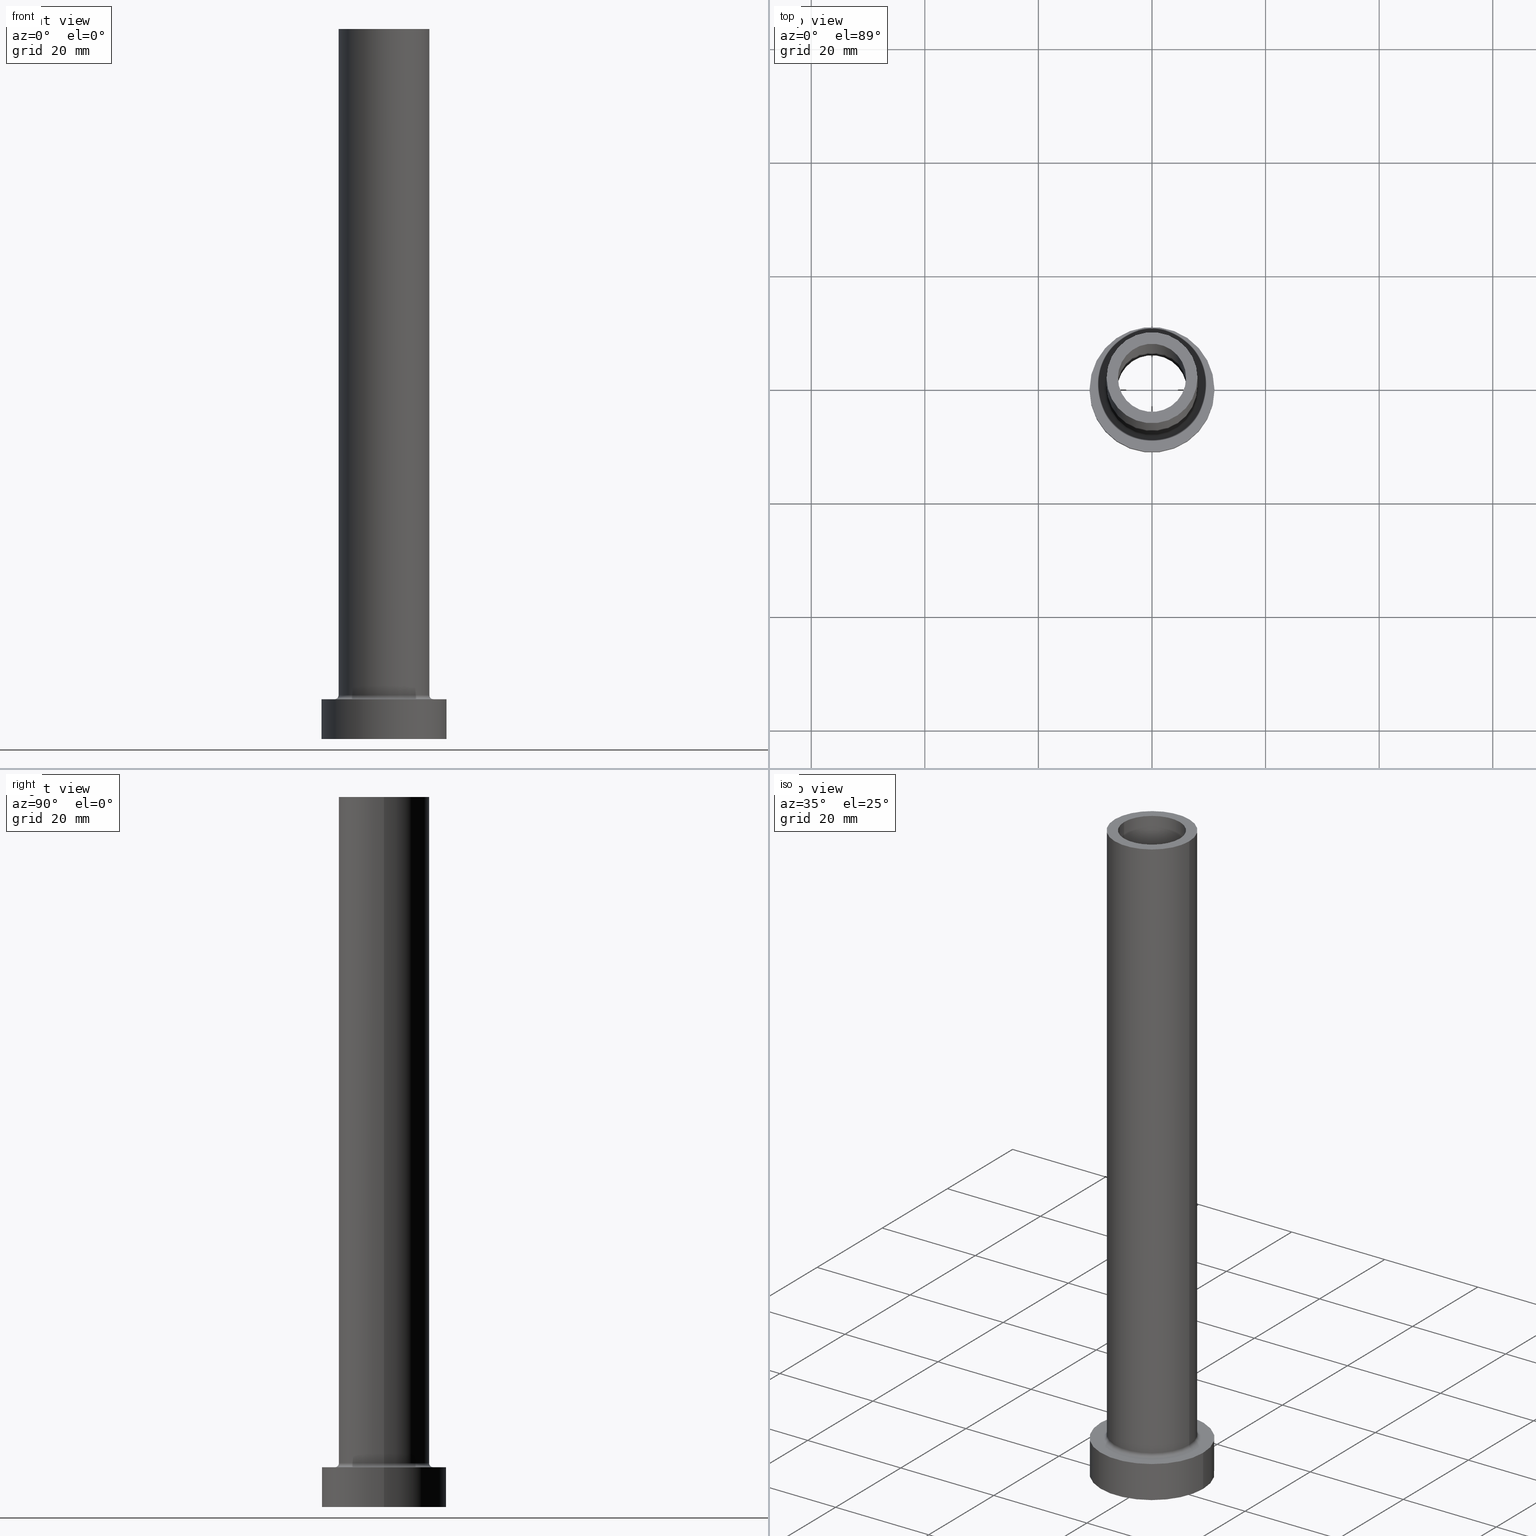
[diagram: canonical four-view strip — front | top / right | iso, engineering-drawing reading convention]
A machine part, canonical four-view strip (front | top / right | iso — engineering-drawing reading convention). The complete STEP part file that produces these views, byte-faithful:
ISO-10303-21;
HEADER;
FILE_DESCRIPTION (( 'STEP AP203' ),
    '1' );
FILE_NAME ('2266.STEP',
    '2023-02-13T07:42:56',
    ( '' ),
    ( '' ),
    'SwSTEP 2.0',
    'SolidWorks 2019',
    '' );
FILE_SCHEMA (( 'CONFIG_CONTROL_DESIGN' ));
ENDSEC;

DATA;
#1 = DIRECTION ( 'NONE',  ( 0.000000000000000000, 0.000000000000000000, 1.000000000000000000 ) ) ;
#2 = VERTEX_POINT ( 'NONE', #250 ) ;
#3 = EDGE_CURVE ( 'NONE', #64, #173, #388, .T. ) ;
#4 = AXIS2_PLACEMENT_3D ( 'NONE', #340, #83, #441 ) ;
#5 = VERTEX_POINT ( 'NONE', #45 ) ;
#6 = DIRECTION ( 'NONE',  ( -1.000000000000000000, 0.000000000000000000, 0.000000000000000000 ) ) ;
#7 = DATE_AND_TIME ( #330, #72 ) ;
#8 = CARTESIAN_POINT ( 'NONE',  ( 8.000000000000000000, 9.797174393178825657E-16, 125.0000000000000000 ) ) ;
#9 = PERSON_AND_ORGANIZATION ( #387, #12 ) ;
#10 = VECTOR ( 'NONE', #192, 1000.000000000000000 ) ;
#11 = LINE ( 'NONE', #8, #439 ) ;
#12 = ORGANIZATION ( 'NEUR�EN�', 'NEUR�EN�', '' ) ;
#13 = AXIS2_PLACEMENT_3D ( 'NONE', #96, #391, #63 ) ;
#14 = PLANE ( 'NONE',  #42 ) ;
#15 = PLANE ( 'NONE',  #358 ) ;
#16 = CIRCLE ( 'NONE', #76, 0.7000000000000000666 ) ;
#17 = EDGE_CURVE ( 'NONE', #442, #131, #399, .T. ) ;
#18 = DIRECTION ( 'NONE',  ( 0.000000000000000000, 0.000000000000000000, 1.000000000000000000 ) ) ;
#19 = ORIENTED_EDGE ( 'NONE', *, *, #304, .F. ) ;
#20 = LINE ( 'NONE', #60, #10 ) ;
#21 = ORIENTED_EDGE ( 'NONE', *, *, #411, .F. ) ;
#22 = FACE_OUTER_BOUND ( 'NONE', #375, .T. ) ;
#23 = CARTESIAN_POINT ( 'NONE',  ( 6.150000000000000355, 7.531577814756222064E-16, 80.00000000000000000 ) ) ;
#24 = ORIENTED_EDGE ( 'NONE', *, *, #257, .F. ) ;
#25 = ORIENTED_EDGE ( 'NONE', *, *, #186, .T. ) ;
#26 = EDGE_LOOP ( 'NONE', ( #272, #164 ) ) ;
#27 = DIRECTION ( 'NONE',  ( 0.000000000000000000, 0.000000000000000000, -1.000000000000000000 ) ) ;
#28 = ORIENTED_EDGE ( 'NONE', *, *, #17, .T. ) ;
#29 = DIRECTION ( 'NONE',  ( -0.000000000000000000, -0.000000000000000000, -1.000000000000000000 ) ) ;
#30 = ORIENTED_EDGE ( 'NONE', *, *, #319, .F. ) ;
#31 = AXIS2_PLACEMENT_3D ( 'NONE', #323, #1, #268 ) ;
#32 =( LENGTH_UNIT ( ) NAMED_UNIT ( * ) SI_UNIT ( .MILLI., .METRE. ) );
#33 = CARTESIAN_POINT ( 'NONE',  ( 0.000000000000000000, 0.000000000000000000, 125.0000000000000000 ) ) ;
#34 = PERSON_AND_ORGANIZATION_ROLE ( 'creator' ) ;
#35 = CC_DESIGN_DATE_AND_TIME_ASSIGNMENT ( #364, #333, ( #112 ) ) ;
#36 = DIRECTION ( 'NONE',  ( 0.000000000000000000, 0.000000000000000000, 1.000000000000000000 ) ) ;
#37 = PERSON_AND_ORGANIZATION ( #387, #12 ) ;
#38 = AXIS2_PLACEMENT_3D ( 'NONE', #276, #446, #228 ) ;
#39 = LINE ( 'NONE', #327, #141 ) ;
#40 = CC_DESIGN_PERSON_AND_ORGANIZATION_ASSIGNMENT ( #292, #177, ( #52 ) ) ;
#41 = AXIS2_PLACEMENT_3D ( 'NONE', #252, #36, #459 ) ;
#42 = AXIS2_PLACEMENT_3D ( 'NONE', #342, #18, #269 ) ;
#43 = DIRECTION ( 'NONE',  ( -0.000000000000000000, -0.000000000000000000, -1.000000000000000000 ) ) ;
#44 = DIRECTION ( 'NONE',  ( 0.000000000000000000, 0.000000000000000000, -1.000000000000000000 ) ) ;
#45 = CARTESIAN_POINT ( 'NONE',  ( -6.150000000000000355, 0.000000000000000000, 80.00000000000000000 ) ) ;
#46 = ORIENTED_EDGE ( 'NONE', *, *, #326, .T. ) ;
#47 = VERTEX_POINT ( 'NONE', #260 ) ;
#48 = DESIGN_CONTEXT ( 'detailed design', #386, 'design' ) ;
#49 = DIRECTION ( 'NONE',  ( -1.000000000000000000, 0.000000000000000000, 0.000000000000000000 ) ) ;
#50 = DIRECTION ( 'NONE',  ( 1.000000000000000000, 0.000000000000000000, 0.000000000000000000 ) ) ;
#51 = ORIENTED_EDGE ( 'NONE', *, *, #319, .T. ) ;
#52 = PRODUCT_DEFINITION_FORMATION_WITH_SPECIFIED_SOURCE ( 'LIBOVOLN�', '', #401, .NOT_KNOWN. ) ;
#53 = EDGE_CURVE ( 'NONE', #5, #346, #329, .T. ) ;
#54 = LINE ( 'NONE', #195, #139 ) ;
#55 = EDGE_LOOP ( 'NONE', ( #122, #223 ) ) ;
#56 = FACE_OUTER_BOUND ( 'NONE', #308, .T. ) ;
#57 = DIRECTION ( 'NONE',  ( -0.000000000000000000, -0.000000000000000000, -1.000000000000000000 ) ) ;
#58 = ORIENTED_EDGE ( 'NONE', *, *, #278, .T. ) ;
#59 = CARTESIAN_POINT ( 'NONE',  ( -11.00000000000000000, 0.000000000000000000, 7.000000000000000000 ) ) ;
#60 = CARTESIAN_POINT ( 'NONE',  ( -6.150000000000000355, 0.000000000000000000, 97.39482681718907031 ) ) ;
#61 = ORIENTED_EDGE ( 'NONE', *, *, #397, .T. ) ;
#62 = DIRECTION ( 'NONE',  ( 1.000000000000000000, 0.000000000000000000, 0.000000000000000000 ) ) ;
#63 = DIRECTION ( 'NONE',  ( 1.000000000000000000, 0.000000000000000000, 0.000000000000000000 ) ) ;
#64 = VERTEX_POINT ( 'NONE', #231 ) ;
#65 = DIRECTION ( 'NONE',  ( -0.000000000000000000, -0.000000000000000000, -1.000000000000000000 ) ) ;
#66 = FACE_BOUND ( 'NONE', #382, .T. ) ;
#67 = EDGE_CURVE ( 'NONE', #131, #442, #160, .T. ) ;
#68 = CARTESIAN_POINT ( 'NONE',  ( 8.000000000000000000, 9.797174393178825657E-16, 7.699999999999998401 ) ) ;
#69 = SECURITY_CLASSIFICATION_LEVEL ( 'unclassified' ) ;
#70 = ORIENTED_EDGE ( 'NONE', *, *, #397, .F. ) ;
#71 = CALENDAR_DATE ( 2023, 13, 2 ) ;
#72 = LOCAL_TIME ( 8, 42, 56.00000000000000000, #134 ) ;
#73 = DIRECTION ( 'NONE',  ( -0.000000000000000000, -0.000000000000000000, -1.000000000000000000 ) ) ;
#74 = SHAPE_DEFINITION_REPRESENTATION ( #168, #265 ) ;
#75 = CARTESIAN_POINT ( 'NONE',  ( 0.000000000000000000, 0.000000000000000000, 7.699999999999998401 ) ) ;
#76 = AXIS2_PLACEMENT_3D ( 'NONE', #310, #200, #348 ) ;
#77 = AXIS2_PLACEMENT_3D ( 'NONE', #183, #290, #354 ) ;
#78 = PLANE ( 'NONE',  #84 ) ;
#79 = ORIENTED_EDGE ( 'NONE', *, *, #344, .T. ) ;
#80 = AXIS2_PLACEMENT_3D ( 'NONE', #75, #142, #437 ) ;
#81 = CYLINDRICAL_SURFACE ( 'NONE', #102, 6.150000000000000355 ) ;
#82 = CYLINDRICAL_SURFACE ( 'NONE', #293, 6.000000000000000888 ) ;
#83 = DIRECTION ( 'NONE',  ( 0.000000000000000000, 0.000000000000000000, 1.000000000000000000 ) ) ;
#84 = AXIS2_PLACEMENT_3D ( 'NONE', #307, #89, #118 ) ;
#85 = DIRECTION ( 'NONE',  ( 1.000000000000000000, 0.000000000000000000, -0.000000000000000000 ) ) ;
#86 = ORIENTED_EDGE ( 'NONE', *, *, #370, .T. ) ;
#87 = ADVANCED_FACE ( 'NONE', ( #152 ), #239, .F. ) ;
#88 = AXIS2_PLACEMENT_3D ( 'NONE', #352, #456, #62 ) ;
#89 = DIRECTION ( 'NONE',  ( 0.000000000000000000, 0.000000000000000000, 1.000000000000000000 ) ) ;
#90 = EDGE_LOOP ( 'NONE', ( #104, #341 ) ) ;
#91 = CYLINDRICAL_SURFACE ( 'NONE', #256, 11.00000000000000000 ) ;
#92 = AXIS2_PLACEMENT_3D ( 'NONE', #33, #427, #317 ) ;
#93 = DIRECTION ( 'NONE',  ( -0.000000000000000000, -0.000000000000000000, -1.000000000000000000 ) ) ;
#94 = CARTESIAN_POINT ( 'NONE',  ( 0.000000000000000000, 0.000000000000000000, 7.000000000000000000 ) ) ;
#95 = ORIENTED_EDGE ( 'NONE', *, *, #458, .T. ) ;
#96 = CARTESIAN_POINT ( 'NONE',  ( 0.000000000000000000, 0.000000000000000000, 0.000000000000000000 ) ) ;
#97 = CYLINDRICAL_SURFACE ( 'NONE', #309, 6.000000000000000888 ) ;
#98 = CC_DESIGN_APPROVAL ( #430, ( #52 ) ) ;
#99 = FACE_OUTER_BOUND ( 'NONE', #204, .T. ) ;
#100 = CYLINDRICAL_SURFACE ( 'NONE', #420, 6.150000000000000355 ) ;
#101 = APPROVAL_ROLE ( '' ) ;
#102 = AXIS2_PLACEMENT_3D ( 'NONE', #117, #224, #49 ) ;
#103 = ADVANCED_FACE ( 'NONE', ( #22 ), #82, .F. ) ;
#104 = ORIENTED_EDGE ( 'NONE', *, *, #445, .T. ) ;
#105 = DIRECTION ( 'NONE',  ( 1.000000000000000000, 0.000000000000000000, 0.000000000000000000 ) ) ;
#106 = APPROVAL_DATE_TIME ( #219, #369 ) ;
#107 = CC_DESIGN_PERSON_AND_ORGANIZATION_ASSIGNMENT ( #207, #425, ( #401 ) ) ;
#108 = DATE_AND_TIME ( #362, #111 ) ;
#109 = COORDINATED_UNIVERSAL_TIME_OFFSET ( 1, 0, .AHEAD. ) ;
#110 = VECTOR ( 'NONE', #27, 1000.000000000000000 ) ;
#111 = LOCAL_TIME ( 8, 42, 56.00000000000000000, #322 ) ;
#112 = PRODUCT_DEFINITION ( 'NEZN�M�', '', #52, #48 ) ;
#113 = ADVANCED_FACE ( 'NONE', ( #266, #187 ), #78, .T. ) ;
#114 = DIRECTION ( 'NONE',  ( 0.000000000000000000, 0.000000000000000000, 1.000000000000000000 ) ) ;
#115 = CARTESIAN_POINT ( 'NONE',  ( 0.000000000000000000, 0.000000000000000000, 80.00000000000000000 ) ) ;
#116 = ORIENTED_EDGE ( 'NONE', *, *, #338, .F. ) ;
#117 = CARTESIAN_POINT ( 'NONE',  ( 0.000000000000000000, 0.000000000000000000, 97.39482681718907031 ) ) ;
#118 = DIRECTION ( 'NONE',  ( 1.000000000000000000, 0.000000000000000000, -0.000000000000000000 ) ) ;
#119 = VERTEX_POINT ( 'NONE', #311 ) ;
#120 = CARTESIAN_POINT ( 'NONE',  ( 6.000000000000000888, 7.347880794884119736E-16, 125.0000000000000000 ) ) ;
#121 = FACE_OUTER_BOUND ( 'NONE', #263, .T. ) ;
#122 = ORIENTED_EDGE ( 'NONE', *, *, #287, .T. ) ;
#123 = CARTESIAN_POINT ( 'NONE',  ( 6.150000000000000355, 7.531577814756222064E-16, 97.39482681718907031 ) ) ;
#124 = ORIENTED_EDGE ( 'NONE', *, *, #377, .F. ) ;
#125 = LINE ( 'NONE', #123, #110 ) ;
#126 = PLANE ( 'NONE',  #31 ) ;
#127 = ORIENTED_EDGE ( 'NONE', *, *, #287, .F. ) ;
#128 = EDGE_CURVE ( 'NONE', #405, #196, #355, .T. ) ;
#129 =( NAMED_UNIT ( * ) PLANE_ANGLE_UNIT ( ) SI_UNIT ( $, .RADIAN. ) );
#130 = ORIENTED_EDGE ( 'NONE', *, *, #337, .T. ) ;
#131 = VERTEX_POINT ( 'NONE', #120 ) ;
#132 = CC_DESIGN_PERSON_AND_ORGANIZATION_ASSIGNMENT ( #286, #34, ( #112 ) ) ;
#133 = APPROVAL_DATE_TIME ( #7, #383 ) ;
#134 = COORDINATED_UNIVERSAL_TIME_OFFSET ( 1, 0, .AHEAD. ) ;
#135 = DIRECTION ( 'NONE',  ( 1.000000000000000000, 0.000000000000000000, 0.000000000000000000 ) ) ;
#136 = CALENDAR_DATE ( 2023, 13, 2 ) ;
#137 = AXIS2_PLACEMENT_3D ( 'NONE', #413, #225, #149 ) ;
#138 = ADVANCED_FACE ( 'NONE', ( #380, #222 ), #14, .F. ) ;
#139 = VECTOR ( 'NONE', #271, 1000.000000000000000 ) ;
#140 = EDGE_CURVE ( 'NONE', #302, #119, #209, .T. ) ;
#141 = VECTOR ( 'NONE', #161, 1000.000000000000000 ) ;
#142 = DIRECTION ( 'NONE',  ( 0.000000000000000000, 0.000000000000000000, 1.000000000000000000 ) ) ;
#143 = DIRECTION ( 'NONE',  ( 1.000000000000000000, 0.000000000000000000, 0.000000000000000000 ) ) ;
#144 = AXIS2_PLACEMENT_3D ( 'NONE', #251, #73, #288 ) ;
#145 = EDGE_CURVE ( 'NONE', #423, #193, #264, .T. ) ;
#146 = DIRECTION ( 'NONE',  ( 1.000000000000000000, 0.000000000000000000, 0.000000000000000000 ) ) ;
#147 = VERTEX_POINT ( 'NONE', #156 ) ;
#148 = LOCAL_TIME ( 8, 42, 56.00000000000000000, #255 ) ;
#149 = DIRECTION ( 'NONE',  ( 1.000000000000000000, 0.000000000000000000, 0.000000000000000000 ) ) ;
#150 = DIRECTION ( 'NONE',  ( 0.000000000000000000, 0.000000000000000000, 1.000000000000000000 ) ) ;
#151 = EDGE_LOOP ( 'NONE', ( #30, #116 ) ) ;
#152 = FACE_OUTER_BOUND ( 'NONE', #343, .T. ) ;
#153 = AXIS2_PLACEMENT_3D ( 'NONE', #419, #93, #201 ) ;
#154 = ORIENTED_EDGE ( 'NONE', *, *, #17, .F. ) ;
#155 = CIRCLE ( 'NONE', #221, 11.00000000000000000 ) ;
#156 = CARTESIAN_POINT ( 'NONE',  ( -11.00000000000000000, 0.000000000000000000, 0.000000000000000000 ) ) ;
#157 = EDGE_CURVE ( 'NONE', #2, #357, #448, .T. ) ;
#158 = ORIENTED_EDGE ( 'NONE', *, *, #411, .T. ) ;
#159 = CYLINDRICAL_SURFACE ( 'NONE', #259, 11.00000000000000000 ) ;
#160 = CIRCLE ( 'NONE', #434, 6.000000000000000888 ) ;
#161 = DIRECTION ( 'NONE',  ( -0.000000000000000000, -0.000000000000000000, -1.000000000000000000 ) ) ;
#162 = CIRCLE ( 'NONE', #432, 6.000000000000000888 ) ;
#163 = DIRECTION ( 'NONE',  ( 0.000000000000000000, 0.000000000000000000, -1.000000000000000000 ) ) ;
#164 = ORIENTED_EDGE ( 'NONE', *, *, #186, .F. ) ;
#165 = APPROVAL_STATUS ( 'not_yet_approved' ) ;
#166 = CARTESIAN_POINT ( 'NONE',  ( 11.00000000000000000, 1.347111479062088405E-15, 0.000000000000000000 ) ) ;
#167 = CC_DESIGN_SECURITY_CLASSIFICATION ( #365, ( #52 ) ) ;
#168 = PRODUCT_DEFINITION_SHAPE ( 'NONE', 'NONE',  #112 ) ;
#169 = ORIENTED_EDGE ( 'NONE', *, *, #3, .T. ) ;
#170 = LOCAL_TIME ( 8, 42, 56.00000000000000000, #109 ) ;
#171 = FACE_OUTER_BOUND ( 'NONE', #351, .T. ) ;
#172 = COORDINATED_UNIVERSAL_TIME_OFFSET ( 1, 0, .AHEAD. ) ;
#173 = VERTEX_POINT ( 'NONE', #443 ) ;
#174 = APPROVAL_STATUS ( 'not_yet_approved' ) ;
#175 = ADVANCED_FACE ( 'NONE', ( #412 ), #81, .F. ) ;
#176 = CIRCLE ( 'NONE', #267, 11.00000000000000000 ) ;
#177 = PERSON_AND_ORGANIZATION_ROLE ( 'creator' ) ;
#178 = CARTESIAN_POINT ( 'NONE',  ( 0.000000000000000000, 0.000000000000000000, 7.699999999999998401 ) ) ;
#179 = CIRCLE ( 'NONE', #384, 8.699999999999999289 ) ;
#180 = CC_DESIGN_PERSON_AND_ORGANIZATION_ASSIGNMENT ( #213, #359, ( #365 ) ) ;
#181 = AXIS2_PLACEMENT_3D ( 'NONE', #349, #378, #440 ) ;
#182 = EDGE_CURVE ( 'NONE', #346, #5, #306, .T. ) ;
#183 = CARTESIAN_POINT ( 'NONE',  ( -8.699999999999999289, 1.065442715258197248E-15, 7.699999999999998401 ) ) ;
#184 = DIRECTION ( 'NONE',  ( 0.000000000000000000, 0.000000000000000000, 1.000000000000000000 ) ) ;
#185 = DIRECTION ( 'NONE',  ( 0.000000000000000000, 0.000000000000000000, 1.000000000000000000 ) ) ;
#186 = EDGE_CURVE ( 'NONE', #173, #64, #220, .T. ) ;
#187 = FACE_OUTER_BOUND ( 'NONE', #90, .T. ) ;
#188 = EDGE_LOOP ( 'NONE', ( #211, #158, #353, #422 ) ) ;
#189 = MANIFOLD_SOLID_BREP ( 'Odebrat vysunut�m4', #376 ) ;
#190 = ADVANCED_FACE ( 'NONE', ( #280 ), #210, .T. ) ;
#191 = DIRECTION ( 'NONE',  ( 0.000000000000000000, 0.000000000000000000, 1.000000000000000000 ) ) ;
#192 = DIRECTION ( 'NONE',  ( 0.000000000000000000, 0.000000000000000000, -1.000000000000000000 ) ) ;
#193 = VERTEX_POINT ( 'NONE', #433 ) ;
#194 = DIRECTION ( 'NONE',  ( -1.000000000000000000, 0.000000000000000000, 0.000000000000000000 ) ) ;
#195 = CARTESIAN_POINT ( 'NONE',  ( -6.000000000000000888, 0.000000000000000000, 125.0000000000000000 ) ) ;
#196 = VERTEX_POINT ( 'NONE', #59 ) ;
#197 = DIRECTION ( 'NONE',  ( 1.000000000000000000, 0.000000000000000000, 0.000000000000000000 ) ) ;
#198 = DIRECTION ( 'NONE',  ( 1.000000000000000000, 0.000000000000000000, 0.000000000000000000 ) ) ;
#199 = ORIENTED_EDGE ( 'NONE', *, *, #257, .T. ) ;
#200 = DIRECTION ( 'NONE',  ( 0.000000000000000000, -1.000000000000000000, 0.000000000000000000 ) ) ;
#201 = DIRECTION ( 'NONE',  ( 1.000000000000000000, 0.000000000000000000, 0.000000000000000000 ) ) ;
#202 = ORIENTED_EDGE ( 'NONE', *, *, #344, .F. ) ;
#203 = ADVANCED_FACE ( 'NONE', ( #56 ), #91, .T. ) ;
#204 = EDGE_LOOP ( 'NONE', ( #208, #328, #46, #169 ) ) ;
#205 = FACE_OUTER_BOUND ( 'NONE', #188, .T. ) ;
#206 = ORIENTED_EDGE ( 'NONE', *, *, #157, .T. ) ;
#207 = PERSON_AND_ORGANIZATION ( #387, #12 ) ;
#208 = ORIENTED_EDGE ( 'NONE', *, *, #275, .F. ) ;
#209 = CIRCLE ( 'NONE', #153, 8.699999999999999289 ) ;
#210 = CYLINDRICAL_SURFACE ( 'NONE', #144, 8.000000000000000000 ) ;
#211 = ORIENTED_EDGE ( 'NONE', *, *, #128, .F. ) ;
#212 = DIRECTION ( 'NONE',  ( 0.000000000000000000, 0.000000000000000000, -1.000000000000000000 ) ) ;
#213 = PERSON_AND_ORGANIZATION ( #387, #12 ) ;
#214 = VERTEX_POINT ( 'NONE', #166 ) ;
#215 =( GEOMETRIC_REPRESENTATION_CONTEXT ( 3 ) GLOBAL_UNCERTAINTY_ASSIGNED_CONTEXT ( ( #227 ) ) GLOBAL_UNIT_ASSIGNED_CONTEXT ( ( #32, #129, #403 ) ) REPRESENTATION_CONTEXT ( 'NONE', 'WORKASPACE' ) );
#216 = DATE_TIME_ROLE ( 'classification_date' ) ;
#217 = AXIS2_PLACEMENT_3D ( 'NONE', #270, #57, #258 ) ;
#218 = CARTESIAN_POINT ( 'NONE',  ( 8.699999999999999289, 0.000000000000000000, 6.999999999999999112 ) ) ;
#219 = DATE_AND_TIME ( #410, #170 ) ;
#220 = CIRCLE ( 'NONE', #428, 6.150000000000000355 ) ;
#221 = AXIS2_PLACEMENT_3D ( 'NONE', #371, #236, #198 ) ;
#222 = FACE_OUTER_BOUND ( 'NONE', #151, .T. ) ;
#223 = ORIENTED_EDGE ( 'NONE', *, *, #421, .T. ) ;
#224 = DIRECTION ( 'NONE',  ( 0.000000000000000000, 0.000000000000000000, -1.000000000000000000 ) ) ;
#225 = DIRECTION ( 'NONE',  ( 0.000000000000000000, 0.000000000000000000, 1.000000000000000000 ) ) ;
#226 = ORIENTED_EDGE ( 'NONE', *, *, #140, .T. ) ;
#227 = UNCERTAINTY_MEASURE_WITH_UNIT (LENGTH_MEASURE( 1.000000000000000082E-05 ), #32, 'distance_accuracy_value', 'NONE');
#228 = DIRECTION ( 'NONE',  ( 1.000000000000000000, 0.000000000000000000, 0.000000000000000000 ) ) ;
#229 = CARTESIAN_POINT ( 'NONE',  ( -11.00000000000000000, 0.000000000000000000, 7.000000000000000000 ) ) ;
#230 = EDGE_LOOP ( 'NONE', ( #226, #95 ) ) ;
#231 = CARTESIAN_POINT ( 'NONE',  ( -6.150000000000000355, 0.000000000000000000, 0.000000000000000000 ) ) ;
#232 = DIRECTION ( 'NONE',  ( -0.000000000000000000, -0.000000000000000000, -1.000000000000000000 ) ) ;
#233 = ORIENTED_EDGE ( 'NONE', *, *, #370, .F. ) ;
#234 = CC_DESIGN_APPROVAL ( #383, ( #365 ) ) ;
#235 = CARTESIAN_POINT ( 'NONE',  ( 0.000000000000000000, 0.000000000000000000, 7.000000000000000000 ) ) ;
#236 = DIRECTION ( 'NONE',  ( 0.000000000000000000, 0.000000000000000000, 1.000000000000000000 ) ) ;
#237 = EDGE_LOOP ( 'NONE', ( #233, #61, #305, #24 ) ) ;
#238 = CARTESIAN_POINT ( 'NONE',  ( 6.000000000000000888, 7.347880794884119736E-16, 125.0000000000000000 ) ) ;
#239 = TOROIDAL_SURFACE ( 'NONE', #38, 8.699999999999999289, 0.6999999999999999556 ) ;
#240 = VERTEX_POINT ( 'NONE', #390 ) ;
#241 = ORIENTED_EDGE ( 'NONE', *, *, #145, .F. ) ;
#242 = DIRECTION ( 'NONE',  ( -0.000000000000000000, -0.000000000000000000, -1.000000000000000000 ) ) ;
#243 = CARTESIAN_POINT ( 'NONE',  ( 0.000000000000000000, 0.000000000000000000, 97.39482681718907031 ) ) ;
#244 = APPROVAL_STATUS ( 'not_yet_approved' ) ;
#245 = EDGE_LOOP ( 'NONE', ( #320, #457 ) ) ;
#246 = AXIS2_PLACEMENT_3D ( 'NONE', #339, #114, #143 ) ;
#247 = APPROVAL_DATE_TIME ( #108, #430 ) ;
#248 = DIRECTION ( 'NONE',  ( -0.000000000000000000, -0.000000000000000000, -1.000000000000000000 ) ) ;
#249 = VECTOR ( 'NONE', #232, 1000.000000000000000 ) ;
#250 = CARTESIAN_POINT ( 'NONE',  ( 6.000000000000000888, 7.347880794884119736E-16, 80.00000000000000000 ) ) ;
#251 = CARTESIAN_POINT ( 'NONE',  ( 0.000000000000000000, 0.000000000000000000, 125.0000000000000000 ) ) ;
#252 = CARTESIAN_POINT ( 'NONE',  ( 0.000000000000000000, 0.000000000000000000, 7.000000000000000000 ) ) ;
#253 = DATE_AND_TIME ( #71, #336 ) ;
#254 = ADVANCED_FACE ( 'NONE', ( #66, #398 ), #126, .T. ) ;
#255 = COORDINATED_UNIVERSAL_TIME_OFFSET ( 1, 0, .AHEAD. ) ;
#256 = AXIS2_PLACEMENT_3D ( 'NONE', #94, #385, #460 ) ;
#257 = EDGE_CURVE ( 'NONE', #423, #302, #16, .T. ) ;
#258 = DIRECTION ( 'NONE',  ( 1.000000000000000000, 0.000000000000000000, 0.000000000000000000 ) ) ;
#259 = AXIS2_PLACEMENT_3D ( 'NONE', #279, #242, #438 ) ;
#260 = CARTESIAN_POINT ( 'NONE',  ( 8.000000000000000000, 9.797174393178825657E-16, 125.0000000000000000 ) ) ;
#261 = EDGE_LOOP ( 'NONE', ( #373, #206 ) ) ;
#262 = DIRECTION ( 'NONE',  ( -0.000000000000000000, -0.000000000000000000, -1.000000000000000000 ) ) ;
#263 = EDGE_LOOP ( 'NONE', ( #28, #58, #402, #202 ) ) ;
#264 = CIRCLE ( 'NONE', #181, 8.000000000000000000 ) ;
#265 = ADVANCED_BREP_SHAPE_REPRESENTATION ( '2266', ( #189, #13 ), #215 ) ;
#266 = FACE_BOUND ( 'NONE', #230, .T. ) ;
#267 = AXIS2_PLACEMENT_3D ( 'NONE', #379, #150, #50 ) ;
#268 = DIRECTION ( 'NONE',  ( 1.000000000000000000, 0.000000000000000000, -0.000000000000000000 ) ) ;
#269 = DIRECTION ( 'NONE',  ( 1.000000000000000000, 0.000000000000000000, -0.000000000000000000 ) ) ;
#270 = CARTESIAN_POINT ( 'NONE',  ( 0.000000000000000000, 0.000000000000000000, 0.000000000000000000 ) ) ;
#271 = DIRECTION ( 'NONE',  ( 0.000000000000000000, 0.000000000000000000, -1.000000000000000000 ) ) ;
#272 = ORIENTED_EDGE ( 'NONE', *, *, #3, .F. ) ;
#273 = CIRCLE ( 'NONE', #92, 8.000000000000000000 ) ;
#274 = LINE ( 'NONE', #238, #417 ) ;
#275 = EDGE_CURVE ( 'NONE', #346, #173, #125, .T. ) ;
#276 = CARTESIAN_POINT ( 'NONE',  ( 0.000000000000000000, 0.000000000000000000, 7.699999999999998401 ) ) ;
#277 = ORIENTED_EDGE ( 'NONE', *, *, #278, .F. ) ;
#278 = EDGE_CURVE ( 'NONE', #131, #2, #274, .T. ) ;
#279 = CARTESIAN_POINT ( 'NONE',  ( 0.000000000000000000, 0.000000000000000000, 7.000000000000000000 ) ) ;
#280 = FACE_OUTER_BOUND ( 'NONE', #316, .T. ) ;
#281 = ORIENTED_EDGE ( 'NONE', *, *, #458, .F. ) ;
#282 = CC_DESIGN_APPROVAL ( #369, ( #112 ) ) ;
#283 = CARTESIAN_POINT ( 'NONE',  ( 0.000000000000000000, 0.000000000000000000, 125.0000000000000000 ) ) ;
#284 = CARTESIAN_POINT ( 'NONE',  ( 0.000000000000000000, 0.000000000000000000, 80.00000000000000000 ) ) ;
#285 = ORIENTED_EDGE ( 'NONE', *, *, #377, .T. ) ;
#286 = PERSON_AND_ORGANIZATION ( #387, #12 ) ;
#287 = EDGE_CURVE ( 'NONE', #240, #47, #294, .T. ) ;
#288 = DIRECTION ( 'NONE',  ( -1.000000000000000000, 0.000000000000000000, 0.000000000000000000 ) ) ;
#289 = APPROVAL_ROLE ( '' ) ;
#290 = DIRECTION ( 'NONE',  ( 1.224646799147353207E-16, 1.000000000000000000, -0.000000000000000000 ) ) ;
#291 = ADVANCED_FACE ( 'NONE', ( #205 ), #159, .T. ) ;
#292 = PERSON_AND_ORGANIZATION ( #387, #12 ) ;
#293 = AXIS2_PLACEMENT_3D ( 'NONE', #450, #44, #194 ) ;
#294 = CIRCLE ( 'NONE', #88, 8.000000000000000000 ) ;
#295 = VECTOR ( 'NONE', #43, 1000.000000000000000 ) ;
#296 = CC_DESIGN_DATE_AND_TIME_ASSIGNMENT ( #253, #216, ( #365 ) ) ;
#297 = DIRECTION ( 'NONE',  ( -1.000000000000000000, 0.000000000000000000, 0.000000000000000000 ) ) ;
#298 = EDGE_CURVE ( 'NONE', #357, #2, #162, .T. ) ;
#299 = CARTESIAN_POINT ( 'NONE',  ( 0.000000000000000000, 0.000000000000000000, 125.0000000000000000 ) ) ;
#300 = ORIENTED_EDGE ( 'NONE', *, *, #421, .F. ) ;
#301 = CARTESIAN_POINT ( 'NONE',  ( 0.000000000000000000, 0.000000000000000000, 0.000000000000000000 ) ) ;
#302 = VERTEX_POINT ( 'NONE', #218 ) ;
#303 = APPROVAL_PERSON_ORGANIZATION ( #9, #430, #289 ) ;
#304 = EDGE_CURVE ( 'NONE', #47, #423, #11, .T. ) ;
#305 = ORIENTED_EDGE ( 'NONE', *, *, #140, .F. ) ;
#306 = CIRCLE ( 'NONE', #368, 6.150000000000000355 ) ;
#307 = CARTESIAN_POINT ( 'NONE',  ( 0.000000000000000000, 0.000000000000000000, 7.000000000000000000 ) ) ;
#308 = EDGE_LOOP ( 'NONE', ( #21, #325, #130, #51 ) ) ;
#309 = AXIS2_PLACEMENT_3D ( 'NONE', #394, #163, #297 ) ;
#310 = CARTESIAN_POINT ( 'NONE',  ( 8.699999999999999289, 0.000000000000000000, 7.699999999999998401 ) ) ;
#311 = CARTESIAN_POINT ( 'NONE',  ( -8.699999999999999289, 1.065442715258197248E-15, 6.999999999999999112 ) ) ;
#312 = FACE_OUTER_BOUND ( 'NONE', #245, .T. ) ;
#313 = ORIENTED_EDGE ( 'NONE', *, *, #53, .T. ) ;
#314 = ADVANCED_FACE ( 'NONE', ( #363 ), #389, .F. ) ;
#315 = DIRECTION ( 'NONE',  ( 0.000000000000000000, 0.000000000000000000, -1.000000000000000000 ) ) ;
#316 = EDGE_LOOP ( 'NONE', ( #19, #127, #285, #86 ) ) ;
#317 = DIRECTION ( 'NONE',  ( 1.000000000000000000, 0.000000000000000000, 0.000000000000000000 ) ) ;
#318 = MECHANICAL_CONTEXT ( 'NONE', #453, 'mechanical' ) ;
#319 = EDGE_CURVE ( 'NONE', #147, #214, #155, .T. ) ;
#320 = ORIENTED_EDGE ( 'NONE', *, *, #53, .F. ) ;
#321 = CYLINDRICAL_SURFACE ( 'NONE', #361, 8.000000000000000000 ) ;
#322 = COORDINATED_UNIVERSAL_TIME_OFFSET ( 1, 0, .AHEAD. ) ;
#323 = CARTESIAN_POINT ( 'NONE',  ( 0.000000000000000000, 0.000000000000000000, 125.0000000000000000 ) ) ;
#324 = CC_DESIGN_PERSON_AND_ORGANIZATION_ASSIGNMENT ( #404, #331, ( #52 ) ) ;
#325 = ORIENTED_EDGE ( 'NONE', *, *, #445, .F. ) ;
#326 = EDGE_CURVE ( 'NONE', #5, #64, #20, .T. ) ;
#327 = CARTESIAN_POINT ( 'NONE',  ( 11.00000000000000000, 1.347111479062088405E-15, 7.000000000000000000 ) ) ;
#328 = ORIENTED_EDGE ( 'NONE', *, *, #182, .T. ) ;
#329 = CIRCLE ( 'NONE', #137, 6.150000000000000355 ) ;
#330 = CALENDAR_DATE ( 2023, 13, 2 ) ;
#331 = PERSON_AND_ORGANIZATION_ROLE ( 'design_supplier' ) ;
#332 = ADVANCED_FACE ( 'NONE', ( #350, #312 ), #15, .F. ) ;
#333 = DATE_TIME_ROLE ( 'creation_date' ) ;
#334 = CIRCLE ( 'NONE', #80, 8.000000000000000000 ) ;
#335 = DIRECTION ( 'NONE',  ( 1.000000000000000000, 0.000000000000000000, 0.000000000000000000 ) ) ;
#336 = LOCAL_TIME ( 8, 42, 56.00000000000000000, #172 ) ;
#337 = EDGE_CURVE ( 'NONE', #196, #147, #418, .T. ) ;
#338 = EDGE_CURVE ( 'NONE', #214, #147, #176, .T. ) ;
#339 = CARTESIAN_POINT ( 'NONE',  ( 0.000000000000000000, 0.000000000000000000, 80.00000000000000000 ) ) ;
#340 = CARTESIAN_POINT ( 'NONE',  ( 0.000000000000000000, 0.000000000000000000, 125.0000000000000000 ) ) ;
#341 = ORIENTED_EDGE ( 'NONE', *, *, #128, .T. ) ;
#342 = CARTESIAN_POINT ( 'NONE',  ( 0.000000000000000000, 0.000000000000000000, 0.000000000000000000 ) ) ;
#343 = EDGE_LOOP ( 'NONE', ( #70, #241, #199, #281 ) ) ;
#344 = EDGE_CURVE ( 'NONE', #442, #357, #54, .T. ) ;
#345 = DIRECTION ( 'NONE',  ( 1.000000000000000000, 0.000000000000000000, 0.000000000000000000 ) ) ;
#346 = VERTEX_POINT ( 'NONE', #23 ) ;
#347 = ORIENTED_EDGE ( 'NONE', *, *, #145, .T. ) ;
#348 = DIRECTION ( 'NONE',  ( 0.000000000000000000, 0.000000000000000000, -1.000000000000000000 ) ) ;
#349 = CARTESIAN_POINT ( 'NONE',  ( 0.000000000000000000, 0.000000000000000000, 7.699999999999998401 ) ) ;
#350 = FACE_BOUND ( 'NONE', #261, .T. ) ;
#351 = EDGE_LOOP ( 'NONE', ( #300, #395, #347, #124 ) ) ;
#352 = CARTESIAN_POINT ( 'NONE',  ( 0.000000000000000000, 0.000000000000000000, 125.0000000000000000 ) ) ;
#353 = ORIENTED_EDGE ( 'NONE', *, *, #338, .T. ) ;
#354 = DIRECTION ( 'NONE',  ( -1.000000000000000000, 1.224646799147353207E-16, 0.000000000000000000 ) ) ;
#355 = CIRCLE ( 'NONE', #416, 11.00000000000000000 ) ;
#356 = PERSON_AND_ORGANIZATION ( #387, #12 ) ;
#357 = VERTEX_POINT ( 'NONE', #451 ) ;
#358 = AXIS2_PLACEMENT_3D ( 'NONE', #115, #415, #85 ) ;
#359 = PERSON_AND_ORGANIZATION_ROLE ( 'classification_officer' ) ;
#360 = CIRCLE ( 'NONE', #77, 0.6999999999999992895 ) ;
#361 = AXIS2_PLACEMENT_3D ( 'NONE', #283, #29, #6 ) ;
#362 = CALENDAR_DATE ( 2023, 13, 2 ) ;
#363 = FACE_OUTER_BOUND ( 'NONE', #237, .T. ) ;
#364 = DATE_AND_TIME ( #136, #148 ) ;
#365 = SECURITY_CLASSIFICATION ( '', '', #69 ) ;
#366 = ADVANCED_FACE ( 'NONE', ( #121 ), #97, .F. ) ;
#367 = LINE ( 'NONE', #436, #295 ) ;
#368 = AXIS2_PLACEMENT_3D ( 'NONE', #374, #191, #146 ) ;
#369 = APPROVAL ( #244, 'NEUR�EN�' ) ;
#370 = EDGE_CURVE ( 'NONE', #193, #423, #334, .T. ) ;
#371 = CARTESIAN_POINT ( 'NONE',  ( 0.000000000000000000, 0.000000000000000000, 0.000000000000000000 ) ) ;
#372 = DIRECTION ( 'NONE',  ( 0.000000000000000000, 0.000000000000000000, 1.000000000000000000 ) ) ;
#373 = ORIENTED_EDGE ( 'NONE', *, *, #298, .T. ) ;
#374 = CARTESIAN_POINT ( 'NONE',  ( 0.000000000000000000, 0.000000000000000000, 80.00000000000000000 ) ) ;
#375 = EDGE_LOOP ( 'NONE', ( #277, #455, #79, #429 ) ) ;
#376 = CLOSED_SHELL ( 'NONE', ( #366, #175, #314, #407, #291, #203, #113, #138, #190, #254, #87, #447, #332, #103 ) ) ;
#377 = EDGE_CURVE ( 'NONE', #240, #193, #367, .T. ) ;
#378 = DIRECTION ( 'NONE',  ( 0.000000000000000000, 0.000000000000000000, 1.000000000000000000 ) ) ;
#379 = CARTESIAN_POINT ( 'NONE',  ( 0.000000000000000000, 0.000000000000000000, 0.000000000000000000 ) ) ;
#380 = FACE_BOUND ( 'NONE', #26, .T. ) ;
#381 = APPROVAL_PERSON_ORGANIZATION ( #37, #383, #409 ) ;
#382 = EDGE_LOOP ( 'NONE', ( #154, #426 ) ) ;
#383 = APPROVAL ( #174, 'NEUR�EN�' ) ;
#384 = AXIS2_PLACEMENT_3D ( 'NONE', #408, #65, #105 ) ;
#385 = DIRECTION ( 'NONE',  ( -0.000000000000000000, -0.000000000000000000, -1.000000000000000000 ) ) ;
#386 = APPLICATION_CONTEXT ( 'configuration controlled 3d designs of mechanical parts and assemblies' ) ;
#387 = PERSON ( 'NEUR�EN�', 'NEUR�EN�', 'NEUR�EN�', ('NEUR�EN�'), ('NEUR�EN�'), ('NEUR�EN�') ) ;
#388 = CIRCLE ( 'NONE', #217, 6.150000000000000355 ) ;
#389 = TOROIDAL_SURFACE ( 'NONE', #435, 8.699999999999999289, 0.6999999999999999556 ) ;
#390 = CARTESIAN_POINT ( 'NONE',  ( -8.000000000000000000, 0.000000000000000000, 125.0000000000000000 ) ) ;
#391 = DIRECTION ( 'NONE',  ( 0.000000000000000000, 0.000000000000000000, 1.000000000000000000 ) ) ;
#392 = ORIENTED_EDGE ( 'NONE', *, *, #326, .F. ) ;
#393 = CIRCLE ( 'NONE', #41, 11.00000000000000000 ) ;
#394 = CARTESIAN_POINT ( 'NONE',  ( 0.000000000000000000, 0.000000000000000000, 125.0000000000000000 ) ) ;
#395 = ORIENTED_EDGE ( 'NONE', *, *, #304, .T. ) ;
#396 = DIRECTION ( 'NONE',  ( -1.000000000000000000, 0.000000000000000000, 0.000000000000000000 ) ) ;
#397 = EDGE_CURVE ( 'NONE', #193, #119, #360, .T. ) ;
#398 = FACE_OUTER_BOUND ( 'NONE', #55, .T. ) ;
#399 = CIRCLE ( 'NONE', #4, 6.000000000000000888 ) ;
#400 = APPLICATION_PROTOCOL_DEFINITION ( 'international standard', 'config_control_design', 1994, #386 ) ;
#401 = PRODUCT ( '2266', '2266', '', ( #318 ) ) ;
#402 = ORIENTED_EDGE ( 'NONE', *, *, #298, .F. ) ;
#403 =( NAMED_UNIT ( * ) SI_UNIT ( $, .STERADIAN. ) SOLID_ANGLE_UNIT ( ) );
#404 = PERSON_AND_ORGANIZATION ( #387, #12 ) ;
#405 = VERTEX_POINT ( 'NONE', #424 ) ;
#406 = APPLICATION_PROTOCOL_DEFINITION ( 'international standard', 'config_control_design', 1994, #453 ) ;
#407 = ADVANCED_FACE ( 'NONE', ( #171 ), #321, .T. ) ;
#408 = CARTESIAN_POINT ( 'NONE',  ( 0.000000000000000000, 0.000000000000000000, 7.000000000000000000 ) ) ;
#409 = APPROVAL_ROLE ( '' ) ;
#410 = CALENDAR_DATE ( 2023, 13, 2 ) ;
#411 = EDGE_CURVE ( 'NONE', #405, #214, #39, .T. ) ;
#412 = FACE_OUTER_BOUND ( 'NONE', #461, .T. ) ;
#413 = CARTESIAN_POINT ( 'NONE',  ( 0.000000000000000000, 0.000000000000000000, 80.00000000000000000 ) ) ;
#414 = DIRECTION ( 'NONE',  ( 1.000000000000000000, 0.000000000000000000, 0.000000000000000000 ) ) ;
#415 = DIRECTION ( 'NONE',  ( 0.000000000000000000, 0.000000000000000000, 1.000000000000000000 ) ) ;
#416 = AXIS2_PLACEMENT_3D ( 'NONE', #235, #454, #345 ) ;
#417 = VECTOR ( 'NONE', #315, 1000.000000000000000 ) ;
#418 = LINE ( 'NONE', #229, #249 ) ;
#419 = CARTESIAN_POINT ( 'NONE',  ( 0.000000000000000000, 0.000000000000000000, 7.000000000000000000 ) ) ;
#420 = AXIS2_PLACEMENT_3D ( 'NONE', #243, #212, #396 ) ;
#421 = EDGE_CURVE ( 'NONE', #47, #240, #273, .T. ) ;
#422 = ORIENTED_EDGE ( 'NONE', *, *, #337, .F. ) ;
#423 = VERTEX_POINT ( 'NONE', #68 ) ;
#424 = CARTESIAN_POINT ( 'NONE',  ( 11.00000000000000000, 1.347111479062088405E-15, 7.000000000000000000 ) ) ;
#425 = PERSON_AND_ORGANIZATION_ROLE ( 'design_owner' ) ;
#426 = ORIENTED_EDGE ( 'NONE', *, *, #67, .F. ) ;
#427 = DIRECTION ( 'NONE',  ( 0.000000000000000000, 0.000000000000000000, 1.000000000000000000 ) ) ;
#428 = AXIS2_PLACEMENT_3D ( 'NONE', #301, #262, #414 ) ;
#429 = ORIENTED_EDGE ( 'NONE', *, *, #157, .F. ) ;
#430 = APPROVAL ( #165, 'NEUR�EN�' ) ;
#431 = CARTESIAN_POINT ( 'NONE',  ( -6.000000000000000888, 0.000000000000000000, 125.0000000000000000 ) ) ;
#432 = AXIS2_PLACEMENT_3D ( 'NONE', #284, #184, #335 ) ;
#433 = CARTESIAN_POINT ( 'NONE',  ( -8.000000000000000000, 0.000000000000000000, 7.699999999999998401 ) ) ;
#434 = AXIS2_PLACEMENT_3D ( 'NONE', #299, #372, #197 ) ;
#435 = AXIS2_PLACEMENT_3D ( 'NONE', #178, #185, #135 ) ;
#436 = CARTESIAN_POINT ( 'NONE',  ( -8.000000000000000000, 0.000000000000000000, 125.0000000000000000 ) ) ;
#437 = DIRECTION ( 'NONE',  ( 1.000000000000000000, 0.000000000000000000, 0.000000000000000000 ) ) ;
#438 = DIRECTION ( 'NONE',  ( -1.000000000000000000, 0.000000000000000000, 0.000000000000000000 ) ) ;
#439 = VECTOR ( 'NONE', #248, 1000.000000000000000 ) ;
#440 = DIRECTION ( 'NONE',  ( 1.000000000000000000, 0.000000000000000000, 0.000000000000000000 ) ) ;
#441 = DIRECTION ( 'NONE',  ( 1.000000000000000000, 0.000000000000000000, 0.000000000000000000 ) ) ;
#442 = VERTEX_POINT ( 'NONE', #431 ) ;
#443 = CARTESIAN_POINT ( 'NONE',  ( 6.150000000000000355, 7.531577814756222064E-16, 0.000000000000000000 ) ) ;
#444 = APPROVAL_PERSON_ORGANIZATION ( #356, #369, #101 ) ;
#445 = EDGE_CURVE ( 'NONE', #196, #405, #393, .T. ) ;
#446 = DIRECTION ( 'NONE',  ( 0.000000000000000000, 0.000000000000000000, 1.000000000000000000 ) ) ;
#447 = ADVANCED_FACE ( 'NONE', ( #99 ), #100, .F. ) ;
#448 = CIRCLE ( 'NONE', #246, 6.000000000000000888 ) ;
#449 = PRODUCT_RELATED_PRODUCT_CATEGORY ( 'detail', '', ( #401 ) ) ;
#450 = CARTESIAN_POINT ( 'NONE',  ( 0.000000000000000000, 0.000000000000000000, 125.0000000000000000 ) ) ;
#451 = CARTESIAN_POINT ( 'NONE',  ( -6.000000000000000888, 0.000000000000000000, 80.00000000000000000 ) ) ;
#452 = ORIENTED_EDGE ( 'NONE', *, *, #275, .T. ) ;
#453 = APPLICATION_CONTEXT ( 'configuration controlled 3d designs of mechanical parts and assemblies' ) ;
#454 = DIRECTION ( 'NONE',  ( 0.000000000000000000, 0.000000000000000000, 1.000000000000000000 ) ) ;
#455 = ORIENTED_EDGE ( 'NONE', *, *, #67, .T. ) ;
#456 = DIRECTION ( 'NONE',  ( 0.000000000000000000, 0.000000000000000000, 1.000000000000000000 ) ) ;
#457 = ORIENTED_EDGE ( 'NONE', *, *, #182, .F. ) ;
#458 = EDGE_CURVE ( 'NONE', #119, #302, #179, .T. ) ;
#459 = DIRECTION ( 'NONE',  ( 1.000000000000000000, 0.000000000000000000, 0.000000000000000000 ) ) ;
#460 = DIRECTION ( 'NONE',  ( -1.000000000000000000, 0.000000000000000000, 0.000000000000000000 ) ) ;
#461 = EDGE_LOOP ( 'NONE', ( #313, #452, #25, #392 ) ) ;
ENDSEC;
END-ISO-10303-21;
